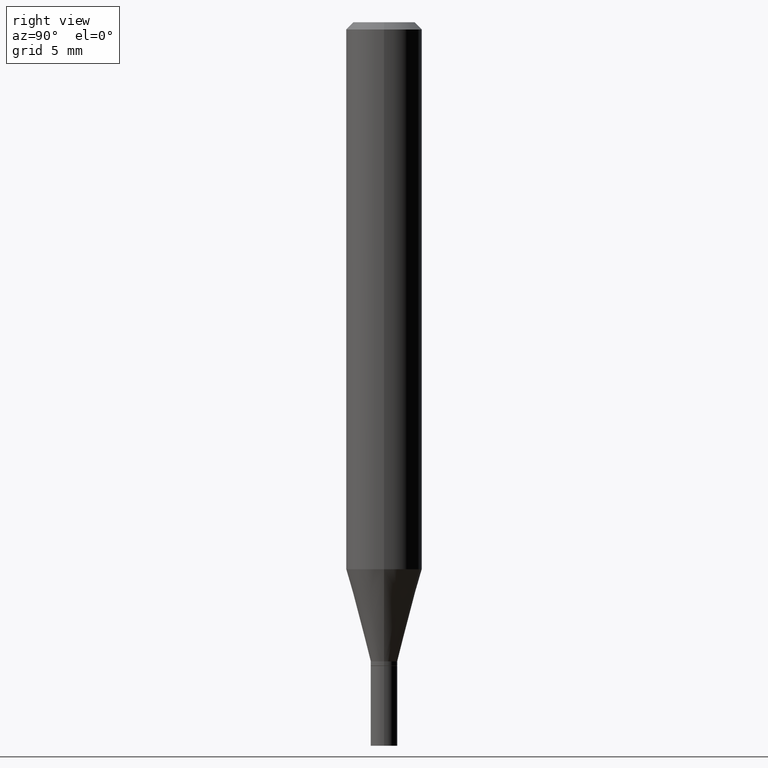
[diagram: clean part render]
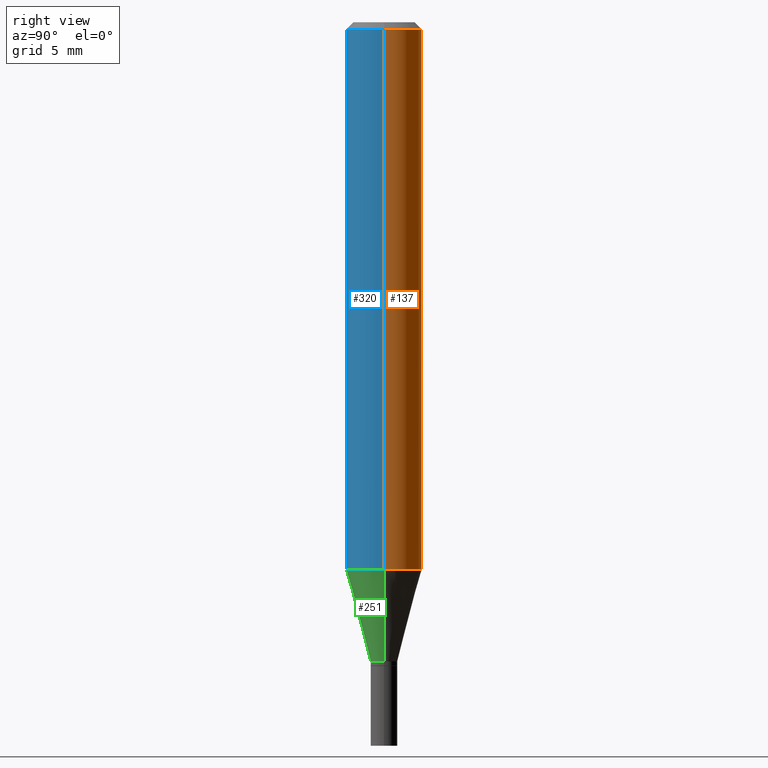
[diagram: same view with three faces highlighted in distinct colors, each labeled with its STEP entity id]
A machine part, right view with three faces highlighted in distinct colors.
Their STEP definitions:

[orange] entity #137 — the highlighted cylindrical surface (partial cylindrical patch) has radius 2.0002 mm, axis along (-0, 0, 1).
#4 = LINE ( 'NONE', #16, #429 ) ;
#14 = EDGE_CURVE ( 'NONE', #340, #117, #4, .T. ) ;
#16 = CARTESIAN_POINT ( 'NONE',  ( 0.07875000000000000056, -5.499083108677934443E-16, 3.839989210939299016E-30 ) ) ;
#17 = CARTESIAN_POINT ( 'NONE',  ( -0.07875000000000000056, -1.446162217407653389E-15, -0.01499999999999999944 ) ) ;
#18 = EDGE_CURVE ( 'NONE', #343, #154, #74, .T. ) ;
#24 = CARTESIAN_POINT ( 'NONE',  ( 2.772963539945309920E-29, -3.959057023554817696E-15, -1.133918998652473586 ) ) ;
#34 = DIRECTION ( 'NONE',  ( 1.000000000000000000, -6.982962677686265922E-15, 0.000000000000000000 ) ) ;
#72 = AXIS2_PLACEMENT_3D ( 'NONE', #24, #257, #215 ) ;
#74 = LINE ( 'NONE', #119, #150 ) ;
#78 = DIRECTION ( 'NONE',  ( -2.445468806185136877E-29, 3.491481338843145188E-15, 1.000000000000000000 ) ) ;
#86 = EDGE_LOOP ( 'NONE', ( #370, #284, #242, #253 ) ) ;
#105 = CIRCLE ( 'NONE', #355, 0.07875000000000000056 ) ;
#114 = CARTESIAN_POINT ( 'NONE',  ( 0.07875000000000000056, -6.022805309504406221E-16, -0.01499999999999999944 ) ) ;
#117 = VERTEX_POINT ( 'NONE', #114 ) ;
#119 = CARTESIAN_POINT ( 'NONE',  ( -0.07875000000000000056, 5.595524044110789003E-16, -3.873661383575737792E-30 ) ) ;
#137 = ADVANCED_FACE ( 'NONE', ( #263 ), #368, .T. ) ;
#150 = VECTOR ( 'NONE', #78, 39.37007874015748143 ) ;
#154 = VERTEX_POINT ( 'NONE', #17 ) ;
#181 = CARTESIAN_POINT ( 'NONE',  ( 3.668203209277705088E-31, -5.237222008264718399E-17, -0.01499999999999999944 ) ) ;
#203 = CIRCLE ( 'NONE', #72, 0.07875000000000000056 ) ;
#215 = DIRECTION ( 'NONE',  ( 1.000000000000000000, -6.982962677686268288E-15, 0.000000000000000000 ) ) ;
#222 = DIRECTION ( 'NONE',  ( -2.445468806185136597E-29, 3.491481338843145583E-15, 1.000000000000000000 ) ) ;
#242 = ORIENTED_EDGE ( 'NONE', *, *, #381, .F. ) ;
#253 = ORIENTED_EDGE ( 'NONE', *, *, #14, .F. ) ;
#257 = DIRECTION ( 'NONE',  ( -2.445468806185136597E-29, 3.491481338843145583E-15, 1.000000000000000000 ) ) ;
#263 = FACE_OUTER_BOUND ( 'NONE', #86, .T. ) ;
#268 = DIRECTION ( 'NONE',  ( 1.000000000000000000, -6.982962677686265922E-15, 4.876176775795935232E-29 ) ) ;
#280 = AXIS2_PLACEMENT_3D ( 'NONE', #361, #222, #268 ) ;
#284 = ORIENTED_EDGE ( 'NONE', *, *, #18, .T. ) ;
#325 = DIRECTION ( 'NONE',  ( -2.445468806185136877E-29, 3.491481338843145188E-15, 1.000000000000000000 ) ) ;
#340 = VERTEX_POINT ( 'NONE', #402 ) ;
#343 = VERTEX_POINT ( 'NONE', #360 ) ;
#350 = DIRECTION ( 'NONE',  ( -2.445468806185136597E-29, 3.491481338843145583E-15, 1.000000000000000000 ) ) ;
#355 = AXIS2_PLACEMENT_3D ( 'NONE', #181, #350, #34 ) ;
#360 = CARTESIAN_POINT ( 'NONE',  ( -0.07875000000000001443, -3.399504619143738500E-15, -1.133918998652473586 ) ) ;
#361 = CARTESIAN_POINT ( 'NONE',  ( 0.000000000000000000, 0.000000000000000000, 0.000000000000000000 ) ) ;
#368 = CYLINDRICAL_SURFACE ( 'NONE', #280, 0.07875000000000000056 ) ;
#370 = ORIENTED_EDGE ( 'NONE', *, *, #425, .T. ) ;
#381 = EDGE_CURVE ( 'NONE', #117, #154, #105, .T. ) ;
#402 = CARTESIAN_POINT ( 'NONE',  ( 0.07875000000000001443, -4.508965334422611042E-15, -1.133918998652473586 ) ) ;
#425 = EDGE_CURVE ( 'NONE', #340, #343, #203, .T. ) ;
#429 = VECTOR ( 'NONE', #325, 39.37007874015748143 ) ;

[blue] entity #320 — the highlighted cylindrical surface (partial cylindrical patch) has radius 2.0002 mm, axis along (-0, 0, 1).
#4 = LINE ( 'NONE', #16, #429 ) ;
#8 = CARTESIAN_POINT ( 'NONE',  ( 0.000000000000000000, 0.000000000000000000, 0.000000000000000000 ) ) ;
#14 = EDGE_CURVE ( 'NONE', #340, #117, #4, .T. ) ;
#16 = CARTESIAN_POINT ( 'NONE',  ( 0.07875000000000000056, -5.499083108677934443E-16, 3.839989210939299016E-30 ) ) ;
#17 = CARTESIAN_POINT ( 'NONE',  ( -0.07875000000000000056, -1.446162217407653389E-15, -0.01499999999999999944 ) ) ;
#18 = EDGE_CURVE ( 'NONE', #343, #154, #74, .T. ) ;
#47 = CIRCLE ( 'NONE', #366, 0.07875000000000000056 ) ;
#50 = ORIENTED_EDGE ( 'NONE', *, *, #451, .F. ) ;
#74 = LINE ( 'NONE', #119, #150 ) ;
#78 = DIRECTION ( 'NONE',  ( -2.445468806185136877E-29, 3.491481338843145188E-15, 1.000000000000000000 ) ) ;
#85 = DIRECTION ( 'NONE',  ( -2.445468806185136597E-29, 3.491481338843145583E-15, 1.000000000000000000 ) ) ;
#114 = CARTESIAN_POINT ( 'NONE',  ( 0.07875000000000000056, -6.022805309504406221E-16, -0.01499999999999999944 ) ) ;
#117 = VERTEX_POINT ( 'NONE', #114 ) ;
#119 = CARTESIAN_POINT ( 'NONE',  ( -0.07875000000000000056, 5.595524044110789003E-16, -3.873661383575737792E-30 ) ) ;
#141 = CIRCLE ( 'NONE', #309, 0.07875000000000000056 ) ;
#150 = VECTOR ( 'NONE', #78, 39.37007874015748143 ) ;
#154 = VERTEX_POINT ( 'NONE', #17 ) ;
#172 = ORIENTED_EDGE ( 'NONE', *, *, #14, .T. ) ;
#201 = FACE_OUTER_BOUND ( 'NONE', #302, .T. ) ;
#208 = CYLINDRICAL_SURFACE ( 'NONE', #385, 0.07875000000000000056 ) ;
#236 = DIRECTION ( 'NONE',  ( 1.000000000000000000, -6.982962677686268288E-15, 0.000000000000000000 ) ) ;
#239 = DIRECTION ( 'NONE',  ( 1.000000000000000000, -6.982962677686265922E-15, 0.000000000000000000 ) ) ;
#266 = DIRECTION ( 'NONE',  ( -2.445468806185136597E-29, 3.491481338843145583E-15, 1.000000000000000000 ) ) ;
#271 = CARTESIAN_POINT ( 'NONE',  ( 3.668203209277705088E-31, -5.237222008264718399E-17, -0.01499999999999999944 ) ) ;
#275 = ORIENTED_EDGE ( 'NONE', *, *, #18, .F. ) ;
#302 = EDGE_LOOP ( 'NONE', ( #275, #443, #172, #50 ) ) ;
#309 = AXIS2_PLACEMENT_3D ( 'NONE', #271, #85, #239 ) ;
#320 = ADVANCED_FACE ( 'NONE', ( #201 ), #208, .T. ) ;
#323 = DIRECTION ( 'NONE',  ( 1.000000000000000000, -6.982962677686265922E-15, 4.876176775795935232E-29 ) ) ;
#325 = DIRECTION ( 'NONE',  ( -2.445468806185136877E-29, 3.491481338843145188E-15, 1.000000000000000000 ) ) ;
#329 = DIRECTION ( 'NONE',  ( -2.445468806185136597E-29, 3.491481338843145583E-15, 1.000000000000000000 ) ) ;
#340 = VERTEX_POINT ( 'NONE', #402 ) ;
#343 = VERTEX_POINT ( 'NONE', #360 ) ;
#359 = CARTESIAN_POINT ( 'NONE',  ( 2.772963539945309920E-29, -3.959057023554817696E-15, -1.133918998652473586 ) ) ;
#360 = CARTESIAN_POINT ( 'NONE',  ( -0.07875000000000001443, -3.399504619143738500E-15, -1.133918998652473586 ) ) ;
#366 = AXIS2_PLACEMENT_3D ( 'NONE', #359, #329, #236 ) ;
#385 = AXIS2_PLACEMENT_3D ( 'NONE', #8, #266, #323 ) ;
#402 = CARTESIAN_POINT ( 'NONE',  ( 0.07875000000000001443, -4.508965334422611042E-15, -1.133918998652473586 ) ) ;
#429 = VECTOR ( 'NONE', #325, 39.37007874015748143 ) ;
#443 = ORIENTED_EDGE ( 'NONE', *, *, #460, .T. ) ;
#451 = EDGE_CURVE ( 'NONE', #154, #117, #141, .T. ) ;
#460 = EDGE_CURVE ( 'NONE', #343, #340, #47, .T. ) ;

[green] entity #251 — the highlighted conical surface has half-angle 15 deg.
#21 = AXIS2_PLACEMENT_3D ( 'NONE', #35, #143, #464 ) ;
#31 = CARTESIAN_POINT ( 'NONE',  ( 3.240246168195306775E-29, -4.626212773967169051E-15, -1.325000000000000178 ) ) ;
#35 = CARTESIAN_POINT ( 'NONE',  ( 3.240246168195306775E-29, -4.626212773967169051E-15, -1.325000000000000178 ) ) ;
#44 = DIRECTION ( 'NONE',  ( -0.2588190451025209060, 5.211531920934547097E-15, 0.9659258262890682012 ) ) ;
#47 = CIRCLE ( 'NONE', #366, 0.07875000000000000056 ) ;
#53 = LINE ( 'NONE', #344, #54 ) ;
#54 = VECTOR ( 'NONE', #342, 39.37007874015748143 ) ;
#59 = DIRECTION ( 'NONE',  ( -2.445468806185136597E-29, 3.491481338843145583E-15, 1.000000000000000000 ) ) ;
#70 = ORIENTED_EDGE ( 'NONE', *, *, #167, .T. ) ;
#79 = CARTESIAN_POINT ( 'NONE',  ( 0.02754999999999993218, -4.818593395737425055E-15, -1.325000000000000178 ) ) ;
#88 = VERTEX_POINT ( 'NONE', #79 ) ;
#109 = AXIS2_PLACEMENT_3D ( 'NONE', #31, #59, #314 ) ;
#135 = ORIENTED_EDGE ( 'NONE', *, *, #460, .F. ) ;
#143 = DIRECTION ( 'NONE',  ( -2.445468806185136597E-29, 3.491481338843145583E-15, 1.000000000000000000 ) ) ;
#144 = EDGE_CURVE ( 'NONE', #406, #343, #358, .T. ) ;
#167 = EDGE_CURVE ( 'NONE', #88, #340, #53, .T. ) ;
#168 = ORIENTED_EDGE ( 'NONE', *, *, #383, .T. ) ;
#170 = FACE_OUTER_BOUND ( 'NONE', #237, .T. ) ;
#171 = ORIENTED_EDGE ( 'NONE', *, *, #144, .F. ) ;
#221 = CIRCLE ( 'NONE', #21, 0.02754999999999993218 ) ;
#229 = CARTESIAN_POINT ( 'NONE',  ( -0.02754999999999993218, -4.430458250265261709E-15, -1.325000000000000178 ) ) ;
#236 = DIRECTION ( 'NONE',  ( 1.000000000000000000, -6.982962677686268288E-15, 0.000000000000000000 ) ) ;
#237 = EDGE_LOOP ( 'NONE', ( #171, #168, #70, #135 ) ) ;
#251 = ADVANCED_FACE ( 'NONE', ( #170 ), #459, .T. ) ;
#254 = VECTOR ( 'NONE', #44, 39.37007874015748143 ) ;
#314 = DIRECTION ( 'NONE',  ( 1.000000000000000000, -6.982962677686273810E-15, 0.000000000000000000 ) ) ;
#318 = CARTESIAN_POINT ( 'NONE',  ( -0.02754999999999993218, -3.914981434704499907E-15, -1.325000000000000178 ) ) ;
#329 = DIRECTION ( 'NONE',  ( -2.445468806185136597E-29, 3.491481338843145583E-15, 1.000000000000000000 ) ) ;
#340 = VERTEX_POINT ( 'NONE', #402 ) ;
#342 = DIRECTION ( 'NONE',  ( 0.2588190451025209060, 1.565188264969625123E-15, 0.9659258262890682012 ) ) ;
#343 = VERTEX_POINT ( 'NONE', #360 ) ;
#344 = CARTESIAN_POINT ( 'NONE',  ( 0.02754999999999993218, -4.818593395737425055E-15, -1.325000000000000178 ) ) ;
#358 = LINE ( 'NONE', #229, #254 ) ;
#359 = CARTESIAN_POINT ( 'NONE',  ( 2.772963539945309920E-29, -3.959057023554817696E-15, -1.133918998652473586 ) ) ;
#360 = CARTESIAN_POINT ( 'NONE',  ( -0.07875000000000001443, -3.399504619143738500E-15, -1.133918998652473586 ) ) ;
#366 = AXIS2_PLACEMENT_3D ( 'NONE', #359, #329, #236 ) ;
#383 = EDGE_CURVE ( 'NONE', #406, #88, #221, .T. ) ;
#402 = CARTESIAN_POINT ( 'NONE',  ( 0.07875000000000001443, -4.508965334422611042E-15, -1.133918998652473586 ) ) ;
#406 = VERTEX_POINT ( 'NONE', #318 ) ;
#459 = CONICAL_SURFACE ( 'NONE', #109, 0.02754999999999993218, 0.2617993877991495744 ) ;
#460 = EDGE_CURVE ( 'NONE', #343, #340, #47, .T. ) ;
#464 = DIRECTION ( 'NONE',  ( 1.000000000000000000, -6.982962677686273810E-15, 0.000000000000000000 ) ) ;